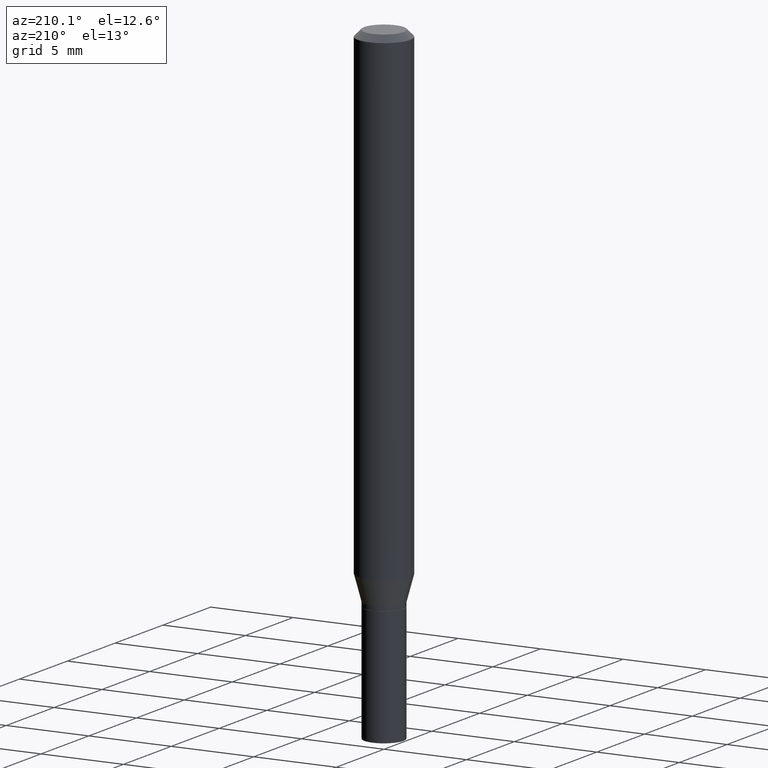
[diagram: clean part render]
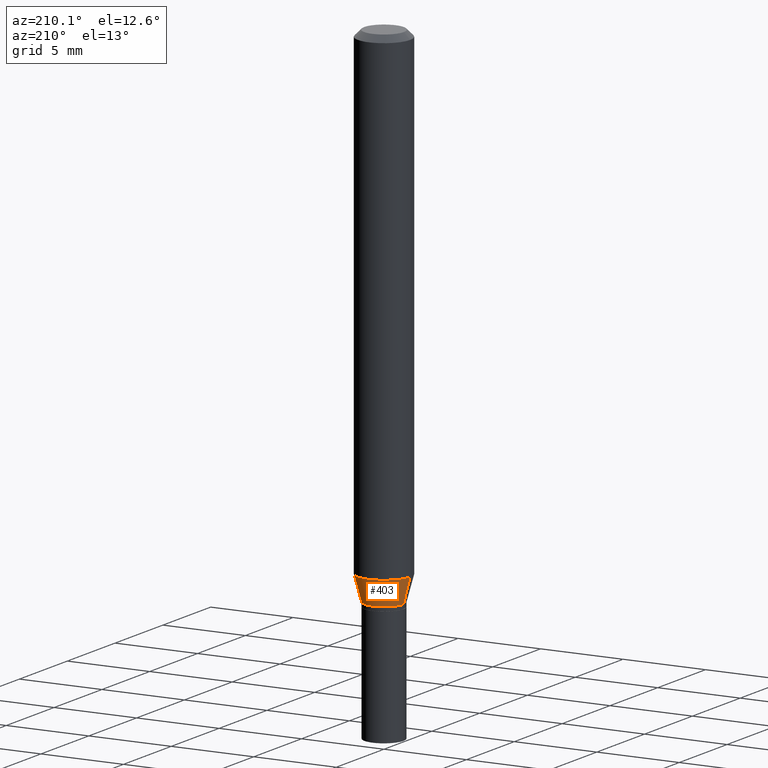
[diagram: same view with one face highlighted and labeled with its STEP entity id]
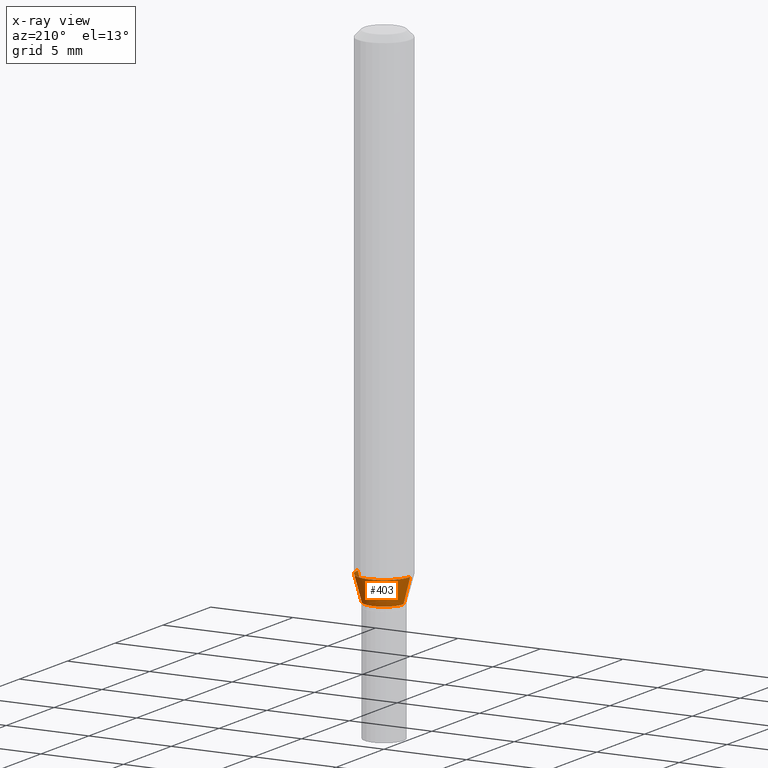
[diagram: x-ray of the same camera — body ghosted, the highlighted face saturated]
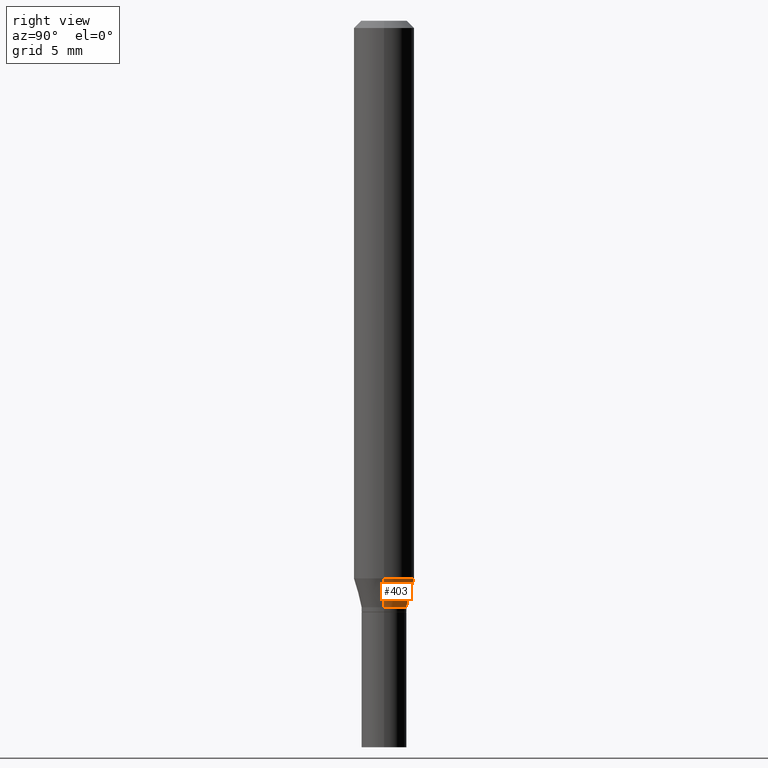
[diagram: same view with one face highlighted and labeled with its STEP entity id]
A machine part, auxiliary view. The second image highlights one B-rep face of the part: STEP entity #403.
The next image is the same camera in x-ray: the body ghosted, the highlighted face saturated — about 0% of this face is hidden behind the body in this view.
A second angle (right view) of the same face is appended — the face is thin or edge-on in the first view.
In plain terms, the highlighted conical surface has half-angle 15 deg.
Its self-contained STEP definition (entity closure, byte-faithful):
#9 = DIRECTION ( 'NONE',  ( 1.000000000000000000, -6.982962677686269866E-15, 0.000000000000000000 ) ) ;
#10 = VERTEX_POINT ( 'NONE', #198 ) ;
#38 = EDGE_LOOP ( 'NONE', ( #46, #337, #96, #120 ) ) ;
#45 = LINE ( 'NONE', #306, #350 ) ;
#46 = ORIENTED_EDGE ( 'NONE', *, *, #245, .T. ) ;
#63 = CARTESIAN_POINT ( 'NONE',  ( 2.961462724290200728E-29, -4.228183901339049671E-15, -1.211000000000000076 ) ) ;
#65 = CIRCLE ( 'NONE', #343, 0.06250000000000000000 ) ;
#87 = CARTESIAN_POINT ( 'NONE',  ( 2.815436902962077376E-29, -4.019697729335190464E-15, -1.151287187078898322 ) ) ;
#96 = ORIENTED_EDGE ( 'NONE', *, *, #145, .F. ) ;
#116 = AXIS2_PLACEMENT_3D ( 'NONE', #340, #434, #9 ) ;
#120 = ORIENTED_EDGE ( 'NONE', *, *, #346, .F. ) ;
#121 = DIRECTION ( 'NONE',  ( -2.445468806185136597E-29, 3.491481338843145583E-15, 1.000000000000000000 ) ) ;
#145 = EDGE_CURVE ( 'NONE', #157, #259, #65, .T. ) ;
#148 = CARTESIAN_POINT ( 'NONE',  ( -0.04650000000000006906, -3.897781529210603185E-15, -1.211000000000000076 ) ) ;
#157 = VERTEX_POINT ( 'NONE', #236 ) ;
#173 = CARTESIAN_POINT ( 'NONE',  ( 0.04650000000000006906, -4.552891665851461956E-15, -1.211000000000000076 ) ) ;
#184 = DIRECTION ( 'NONE',  ( -0.2588190451025203509, 5.211531920934543942E-15, 0.9659258262890684232 ) ) ;
#196 = CIRCLE ( 'NONE', #381, 0.04650000000000006906 ) ;
#198 = CARTESIAN_POINT ( 'NONE',  ( -0.04650000000000006906, -3.736695024347865517E-15, -1.211000000000000076 ) ) ;
#204 = CONICAL_SURFACE ( 'NONE', #116, 0.04650000000000006906, 0.2617993877991490193 ) ;
#236 = CARTESIAN_POINT ( 'NONE',  ( 0.06250000000000000000, -4.456132896690582134E-15, -1.151287187078898322 ) ) ;
#245 = EDGE_CURVE ( 'NONE', #303, #10, #196, .T. ) ;
#255 = CARTESIAN_POINT ( 'NONE',  ( -0.06250000000000000000, -3.575608519485128637E-15, -1.151287187078898322 ) ) ;
#259 = VERTEX_POINT ( 'NONE', #255 ) ;
#282 = DIRECTION ( 'NONE',  ( 1.000000000000000000, -6.982962677686262766E-15, 0.000000000000000000 ) ) ;
#302 = LINE ( 'NONE', #148, #307 ) ;
#303 = VERTEX_POINT ( 'NONE', #173 ) ;
#306 = CARTESIAN_POINT ( 'NONE',  ( 0.04650000000000006906, -4.552891665851461956E-15, -1.211000000000000076 ) ) ;
#307 = VECTOR ( 'NONE', #184, 39.37007874015748143 ) ;
#327 = DIRECTION ( 'NONE',  ( 1.000000000000000000, -6.982962677686269866E-15, 0.000000000000000000 ) ) ;
#337 = ORIENTED_EDGE ( 'NONE', *, *, #352, .T. ) ;
#340 = CARTESIAN_POINT ( 'NONE',  ( 2.961462724290200728E-29, -4.228183901339049671E-15, -1.211000000000000076 ) ) ;
#343 = AXIS2_PLACEMENT_3D ( 'NONE', #87, #121, #282 ) ;
#346 = EDGE_CURVE ( 'NONE', #303, #157, #45, .T. ) ;
#350 = VECTOR ( 'NONE', #368, 39.37007874015748143 ) ;
#352 = EDGE_CURVE ( 'NONE', #10, #259, #302, .T. ) ;
#354 = DIRECTION ( 'NONE',  ( -2.445468806185136597E-29, 3.491481338843145583E-15, 1.000000000000000000 ) ) ;
#368 = DIRECTION ( 'NONE',  ( 0.2588190451025203509, 1.565188264969630053E-15, 0.9659258262890684232 ) ) ;
#381 = AXIS2_PLACEMENT_3D ( 'NONE', #63, #354, #327 ) ;
#393 = FACE_OUTER_BOUND ( 'NONE', #38, .T. ) ;
#403 = ADVANCED_FACE ( 'NONE', ( #393 ), #204, .T. ) ;
#434 = DIRECTION ( 'NONE',  ( -2.445468806185136597E-29, 3.491481338843145583E-15, 1.000000000000000000 ) ) ;